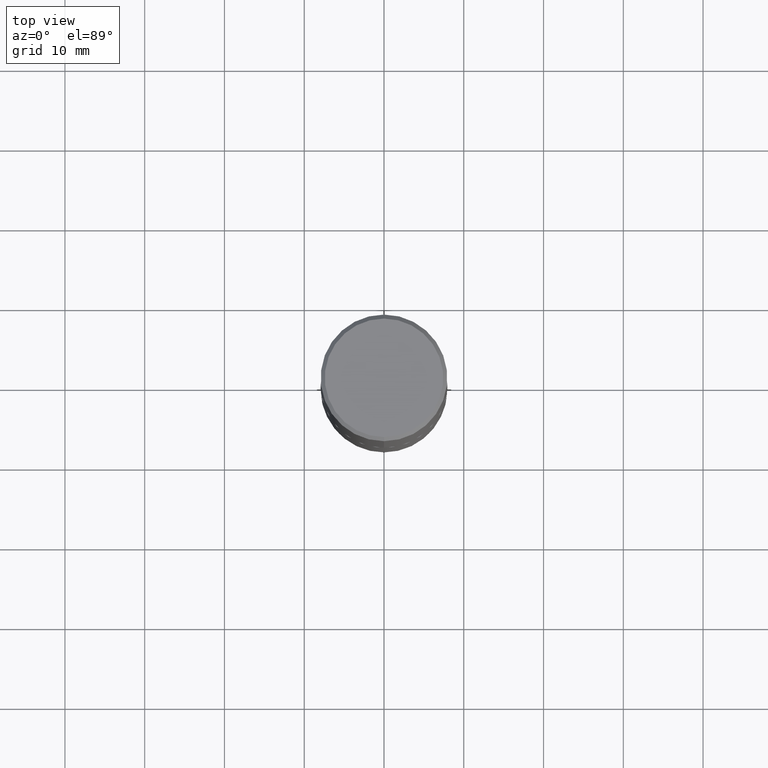
[diagram: clean part render]
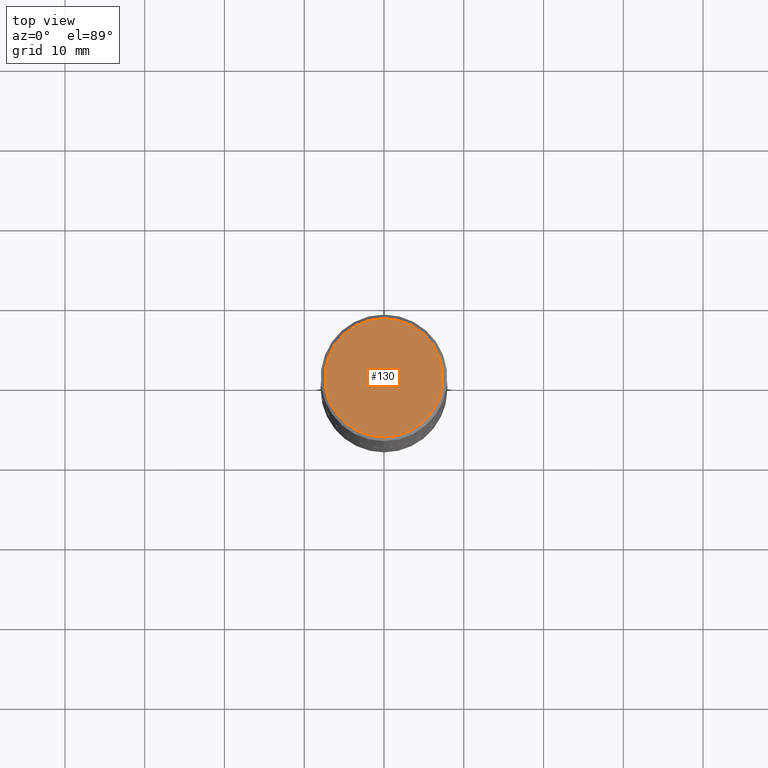
[diagram: same view with one face highlighted and labeled with its STEP entity id]
A machine part, top view. The second image highlights one B-rep face of the part: STEP entity #130.
In plain terms, the highlighted planar face has unit normal (0, -0, -1).
Its self-contained STEP definition (entity closure, byte-faithful):
#38 = AXIS2_PLACEMENT_3D ( 'NONE', #236, #357, #70 ) ;
#53 = EDGE_LOOP ( 'NONE', ( #330, #177 ) ) ;
#54 = AXIS2_PLACEMENT_3D ( 'NONE', #381, #86, #349 ) ;
#70 = DIRECTION ( 'NONE',  ( -6.982962677686265133E-15, -1.000000000000000000, 3.493582101063678231E-15 ) ) ;
#78 = VERTEX_POINT ( 'NONE', #255 ) ;
#86 = DIRECTION ( 'NONE',  ( -2.444001851767069414E-29, 3.493582101063678231E-15, 1.000000000000000000 ) ) ;
#103 = CARTESIAN_POINT ( 'NONE',  ( 2.112346210000095443E-15, 0.2924999999999999267, -1.012721266631418966E-15 ) ) ;
#122 = CIRCLE ( 'NONE', #38, 0.2924999999999999267 ) ;
#130 = ADVANCED_FACE ( 'NONE', ( #190 ), #378, .F. ) ;
#138 = EDGE_CURVE ( 'NONE', #78, #369, #158, .T. ) ;
#152 = CARTESIAN_POINT ( 'NONE',  ( 2.042516583223232145E-15, 0.2924999999999999267, -1.017297015596272278E-15 ) ) ;
#158 = CIRCLE ( 'NONE', #54, 0.2924999999999999267 ) ;
#177 = ORIENTED_EDGE ( 'NONE', *, *, #138, .T. ) ;
#190 = FACE_OUTER_BOUND ( 'NONE', #53, .T. ) ;
#236 = CARTESIAN_POINT ( 'NONE',  ( -2.236627788664550578E-46, 3.197150936514439104E-32, 9.151497929706629664E-18 ) ) ;
#255 = CARTESIAN_POINT ( 'NONE',  ( -2.075300644325887493E-15, -0.2924999999999999267, 1.031024262490832213E-15 ) ) ;
#256 = DIRECTION ( 'NONE',  ( 2.444001851767069134E-29, -3.493582101063678231E-15, -1.000000000000000000 ) ) ;
#330 = ORIENTED_EDGE ( 'NONE', *, *, #364, .T. ) ;
#349 = DIRECTION ( 'NONE',  ( -6.982962677686265133E-15, -1.000000000000000000, 3.493582101063678231E-15 ) ) ;
#357 = DIRECTION ( 'NONE',  ( -2.444001851767069414E-29, 3.493582101063678231E-15, 1.000000000000000000 ) ) ;
#364 = EDGE_CURVE ( 'NONE', #369, #78, #122, .T. ) ;
#369 = VERTEX_POINT ( 'NONE', #103 ) ;
#370 = AXIS2_PLACEMENT_3D ( 'NONE', #152, #256, #389 ) ;
#378 = PLANE ( 'NONE',  #370 ) ;
#381 = CARTESIAN_POINT ( 'NONE',  ( -2.236627788664550578E-46, 3.197150936514439104E-32, 9.151497929706629664E-18 ) ) ;
#389 = DIRECTION ( 'NONE',  ( 6.982962677686265922E-15, 1.000000000000000000, -3.493582101063678231E-15 ) ) ;